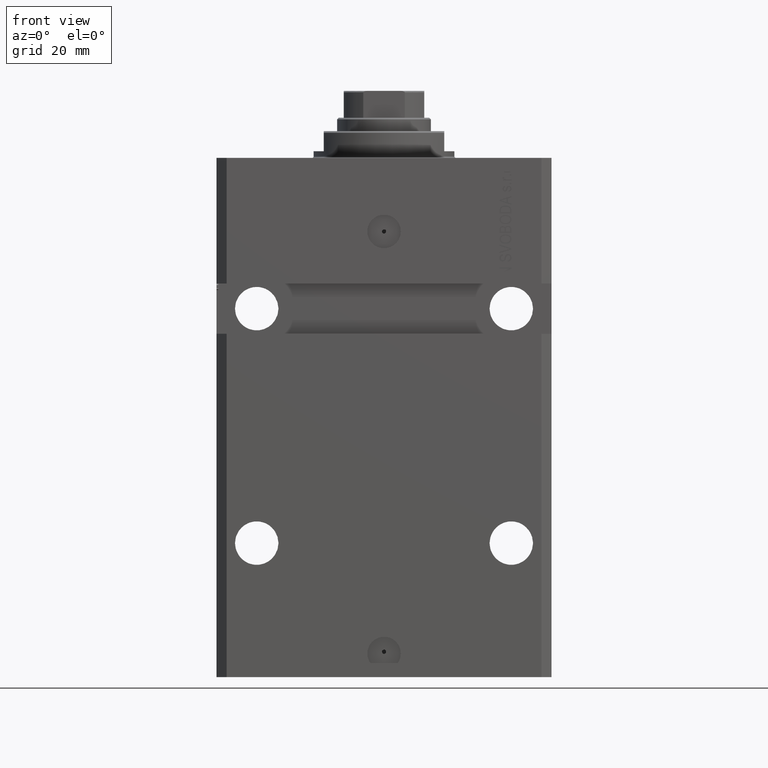
[diagram: clean part render]
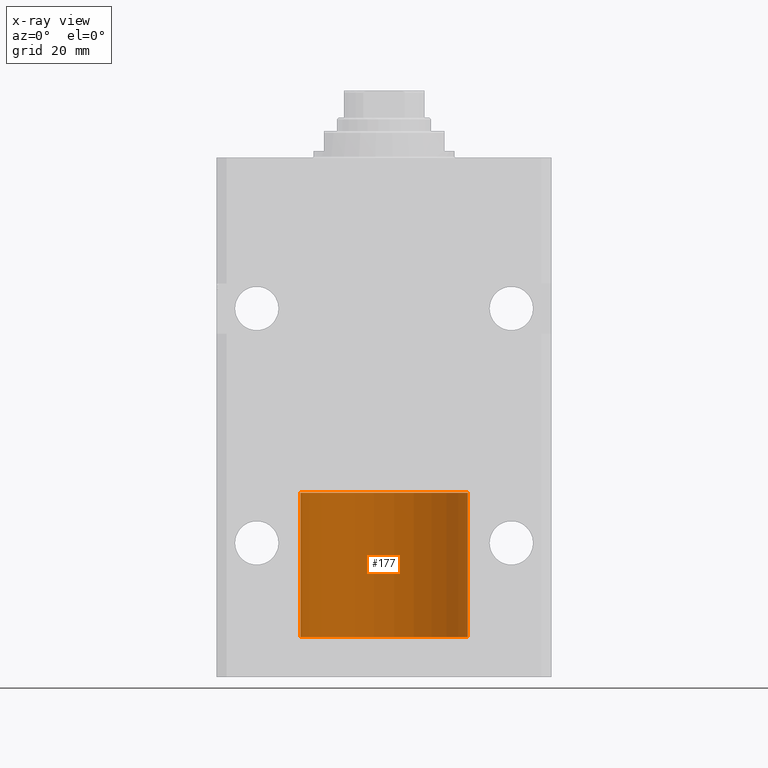
[diagram: x-ray — body ghosted, one internal face saturated and labeled with its STEP entity id]
A machine part, front view, then the same camera in x-ray: the body is ghosted and one INTERNAL B-rep face — a face not visible from any outside direction — is saturated and labeled: STEP entity #177.
In plain terms, the highlighted cylindrical surface (partial cylindrical patch) has radius 25 mm, axis along (-0, -0, -1).
Its self-contained STEP definition (entity closure, byte-faithful):
#177 = ADVANCED_FACE ( 'NONE', ( #41024 ), #29838, .T. ) ;
#2800 = LINE ( 'NONE', #24490, #30314 ) ;
#3274 = DIRECTION ( 'NONE',  ( -1.000000000000000000, 0.000000000000000000, 0.000000000000000000 ) ) ;
#6145 = AXIS2_PLACEMENT_3D ( 'NONE', #35251, #28897, #21091 ) ;
#6288 = ORIENTED_EDGE ( 'NONE', *, *, #22545, .T. ) ;
#7036 = EDGE_CURVE ( 'NONE', #22789, #10810, #2800, .T. ) ;
#7156 = CARTESIAN_POINT ( 'NONE',  ( 0.000000000000000000, 0.000000000000000000, 43.10000000000000142 ) ) ;
#7877 = DIRECTION ( 'NONE',  ( -0.000000000000000000, -0.000000000000000000, -1.000000000000000000 ) ) ;
#10220 = VECTOR ( 'NONE', #17177, 1000.000000000000000 ) ;
#10810 = VERTEX_POINT ( 'NONE', #47778 ) ;
#12507 = EDGE_CURVE ( 'NONE', #30411, #32138, #46462, .T. ) ;
#15279 = ORIENTED_EDGE ( 'NONE', *, *, #7036, .F. ) ;
#16905 = AXIS2_PLACEMENT_3D ( 'NONE', #7156, #7877, #3274 ) ;
#17050 = EDGE_LOOP ( 'NONE', ( #18202, #23833, #6288, #15279 ) ) ;
#17177 = DIRECTION ( 'NONE',  ( -0.000000000000000000, -0.000000000000000000, -1.000000000000000000 ) ) ;
#18202 = ORIENTED_EDGE ( 'NONE', *, *, #24048, .F. ) ;
#21091 = DIRECTION ( 'NONE',  ( 1.000000000000000000, 0.000000000000000000, 0.000000000000000000 ) ) ;
#22241 = CARTESIAN_POINT ( 'NONE',  ( -25.00000000000000000, 0.000000000000000000, 43.10000000000000142 ) ) ;
#22545 = EDGE_CURVE ( 'NONE', #32138, #10810, #36106, .T. ) ;
#22789 = VERTEX_POINT ( 'NONE', #22241 ) ;
#23833 = ORIENTED_EDGE ( 'NONE', *, *, #12507, .T. ) ;
#24048 = EDGE_CURVE ( 'NONE', #30411, #22789, #48160, .T. ) ;
#24490 = CARTESIAN_POINT ( 'NONE',  ( -25.00000000000000000, 0.000000000000000000, 43.10000000000000142 ) ) ;
#28154 = DIRECTION ( 'NONE',  ( -0.000000000000000000, -0.000000000000000000, -1.000000000000000000 ) ) ;
#28897 = DIRECTION ( 'NONE',  ( 0.000000000000000000, 0.000000000000000000, 1.000000000000000000 ) ) ;
#29838 = CYLINDRICAL_SURFACE ( 'NONE', #16905, 25.00000000000000000 ) ;
#30314 = VECTOR ( 'NONE', #28154, 1000.000000000000000 ) ;
#30411 = VERTEX_POINT ( 'NONE', #31267 ) ;
#30598 = DIRECTION ( 'NONE',  ( 0.000000000000000000, 0.000000000000000000, 1.000000000000000000 ) ) ;
#31267 = CARTESIAN_POINT ( 'NONE',  ( 25.00000000000000000, 3.061616997868383043E-15, 43.10000000000000142 ) ) ;
#32138 = VERTEX_POINT ( 'NONE', #45826 ) ;
#33767 = AXIS2_PLACEMENT_3D ( 'NONE', #34242, #30598, #45456 ) ;
#34242 = CARTESIAN_POINT ( 'NONE',  ( 0.000000000000000000, 0.000000000000000000, 0.000000000000000000 ) ) ;
#35251 = CARTESIAN_POINT ( 'NONE',  ( 0.000000000000000000, 0.000000000000000000, 43.10000000000000142 ) ) ;
#36106 = CIRCLE ( 'NONE', #33767, 25.00000000000000000 ) ;
#41024 = FACE_OUTER_BOUND ( 'NONE', #17050, .T. ) ;
#43026 = CARTESIAN_POINT ( 'NONE',  ( 25.00000000000000000, 3.061616997868383043E-15, 43.10000000000000142 ) ) ;
#45456 = DIRECTION ( 'NONE',  ( 1.000000000000000000, 0.000000000000000000, 0.000000000000000000 ) ) ;
#45826 = CARTESIAN_POINT ( 'NONE',  ( 25.00000000000000000, 3.061616997868383043E-15, 0.000000000000000000 ) ) ;
#46462 = LINE ( 'NONE', #43026, #10220 ) ;
#47778 = CARTESIAN_POINT ( 'NONE',  ( -25.00000000000000000, 0.000000000000000000, 0.000000000000000000 ) ) ;
#48160 = CIRCLE ( 'NONE', #6145, 25.00000000000000000 ) ;